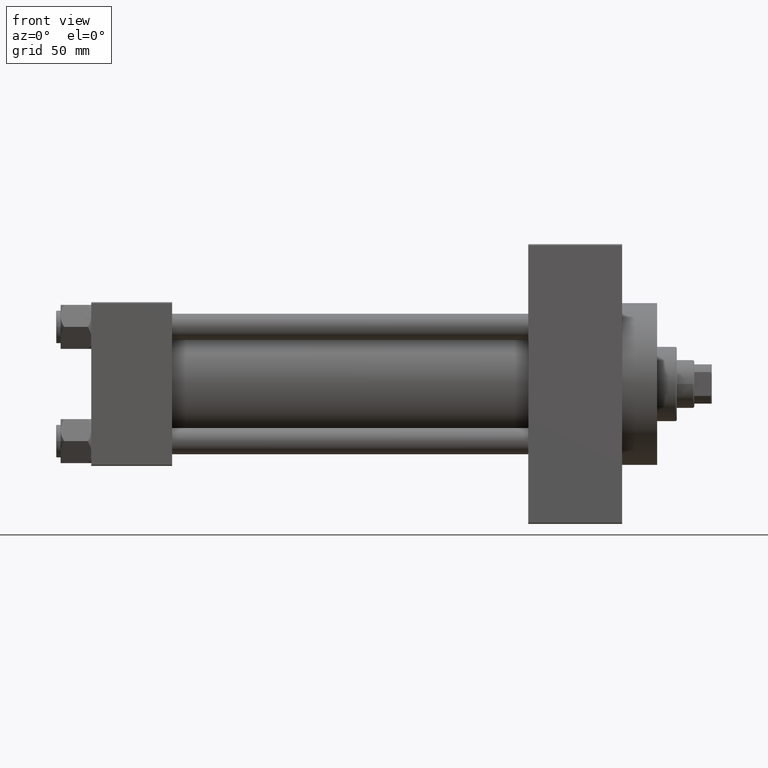
[diagram: clean part render]
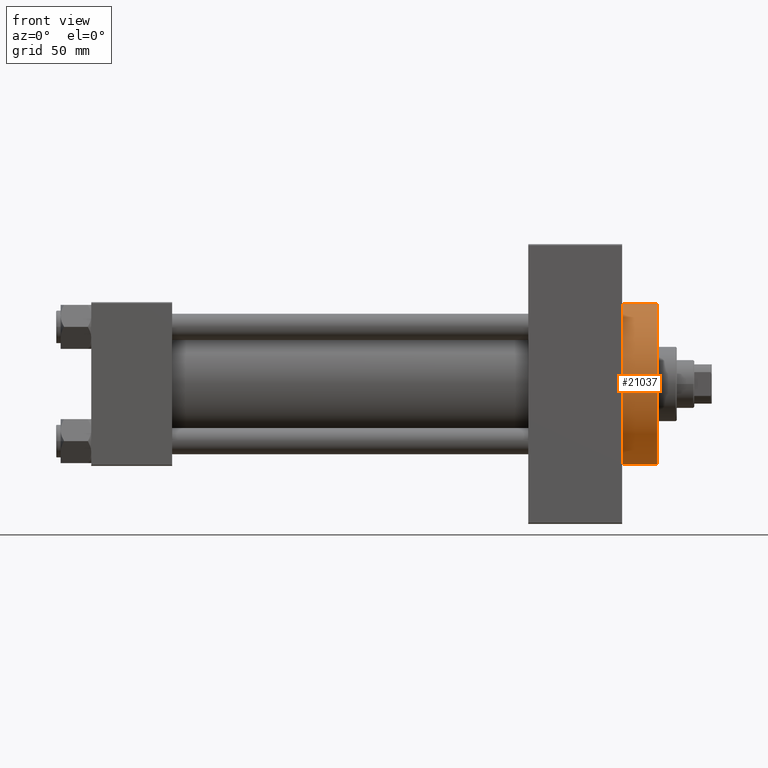
[diagram: same view with one face highlighted and labeled with its STEP entity id]
A machine part, front view. The second image highlights one B-rep face of the part: STEP entity #21037.
In plain terms, the highlighted cylindrical surface (partial cylindrical patch) has radius 37 mm, axis along (-1, -0, -0).
Its self-contained STEP definition (entity closure, byte-faithful):
#326 = DIRECTION ( 'NONE',  ( 1.000000000000000000, 0.000000000000000000, 0.000000000000000000 ) ) ;
#783 = VERTEX_POINT ( 'NONE', #33080 ) ;
#935 = EDGE_CURVE ( 'NONE', #15103, #45445, #27788, .T. ) ;
#2816 = VECTOR ( 'NONE', #9128, 1000.000000000000000 ) ;
#7140 = DIRECTION ( 'NONE',  ( 1.000000000000000000, 0.000000000000000000, 0.000000000000000000 ) ) ;
#7617 = CARTESIAN_POINT ( 'NONE',  ( 259.0000000000000000, 0.000000000000000000, 0.000000000000000000 ) ) ;
#8730 = VECTOR ( 'NONE', #28647, 1000.000000000000000 ) ;
#8917 = EDGE_CURVE ( 'NONE', #783, #15103, #45911, .T. ) ;
#9128 = DIRECTION ( 'NONE',  ( -1.000000000000000000, -0.000000000000000000, -0.000000000000000000 ) ) ;
#9363 = CARTESIAN_POINT ( 'NONE',  ( 259.0000000000000000, 0.000000000000000000, 37.00000000000000000 ) ) ;
#9491 = CARTESIAN_POINT ( 'NONE',  ( 259.0000000000000000, 0.000000000000000000, 0.000000000000000000 ) ) ;
#9783 = CARTESIAN_POINT ( 'NONE',  ( 259.0000000000000000, 4.531193156845206793E-15, -37.00000000000000000 ) ) ;
#10375 = ORIENTED_EDGE ( 'NONE', *, *, #935, .T. ) ;
#12616 = DIRECTION ( 'NONE',  ( -1.000000000000000000, -0.000000000000000000, -0.000000000000000000 ) ) ;
#13847 = LINE ( 'NONE', #9783, #8730 ) ;
#15103 = VERTEX_POINT ( 'NONE', #19847 ) ;
#17858 = CARTESIAN_POINT ( 'NONE',  ( 259.0000000000000000, 4.531193156845206793E-15, -37.00000000000000000 ) ) ;
#18459 = CARTESIAN_POINT ( 'NONE',  ( 243.0000000000000000, 0.000000000000000000, 0.000000000000000000 ) ) ;
#19847 = CARTESIAN_POINT ( 'NONE',  ( 243.0000000000000000, 0.000000000000000000, 37.00000000000000000 ) ) ;
#21037 = ADVANCED_FACE ( 'NONE', ( #38178 ), #38650, .T. ) ;
#21108 = CARTESIAN_POINT ( 'NONE',  ( 243.0000000000000000, 4.531193156845206793E-15, -37.00000000000000000 ) ) ;
#21360 = AXIS2_PLACEMENT_3D ( 'NONE', #9491, #12616, #41764 ) ;
#24326 = CIRCLE ( 'NONE', #47132, 37.00000000000000000 ) ;
#27788 = CIRCLE ( 'NONE', #41552, 37.00000000000000000 ) ;
#28644 = DIRECTION ( 'NONE',  ( 0.000000000000000000, 0.000000000000000000, -1.000000000000000000 ) ) ;
#28647 = DIRECTION ( 'NONE',  ( -1.000000000000000000, -0.000000000000000000, -0.000000000000000000 ) ) ;
#29574 = ORIENTED_EDGE ( 'NONE', *, *, #41425, .F. ) ;
#30252 = VERTEX_POINT ( 'NONE', #17858 ) ;
#32765 = EDGE_CURVE ( 'NONE', #30252, #45445, #13847, .T. ) ;
#33080 = CARTESIAN_POINT ( 'NONE',  ( 259.0000000000000000, 0.000000000000000000, 37.00000000000000000 ) ) ;
#33737 = DIRECTION ( 'NONE',  ( 0.000000000000000000, 0.000000000000000000, -1.000000000000000000 ) ) ;
#37935 = EDGE_LOOP ( 'NONE', ( #39699, #29574, #42010, #10375 ) ) ;
#38178 = FACE_OUTER_BOUND ( 'NONE', #37935, .T. ) ;
#38650 = CYLINDRICAL_SURFACE ( 'NONE', #21360, 37.00000000000000000 ) ;
#39699 = ORIENTED_EDGE ( 'NONE', *, *, #32765, .F. ) ;
#41425 = EDGE_CURVE ( 'NONE', #783, #30252, #24326, .T. ) ;
#41552 = AXIS2_PLACEMENT_3D ( 'NONE', #18459, #326, #33737 ) ;
#41764 = DIRECTION ( 'NONE',  ( 0.000000000000000000, 0.000000000000000000, 1.000000000000000000 ) ) ;
#42010 = ORIENTED_EDGE ( 'NONE', *, *, #8917, .T. ) ;
#45445 = VERTEX_POINT ( 'NONE', #21108 ) ;
#45911 = LINE ( 'NONE', #9363, #2816 ) ;
#47132 = AXIS2_PLACEMENT_3D ( 'NONE', #7617, #7140, #28644 ) ;